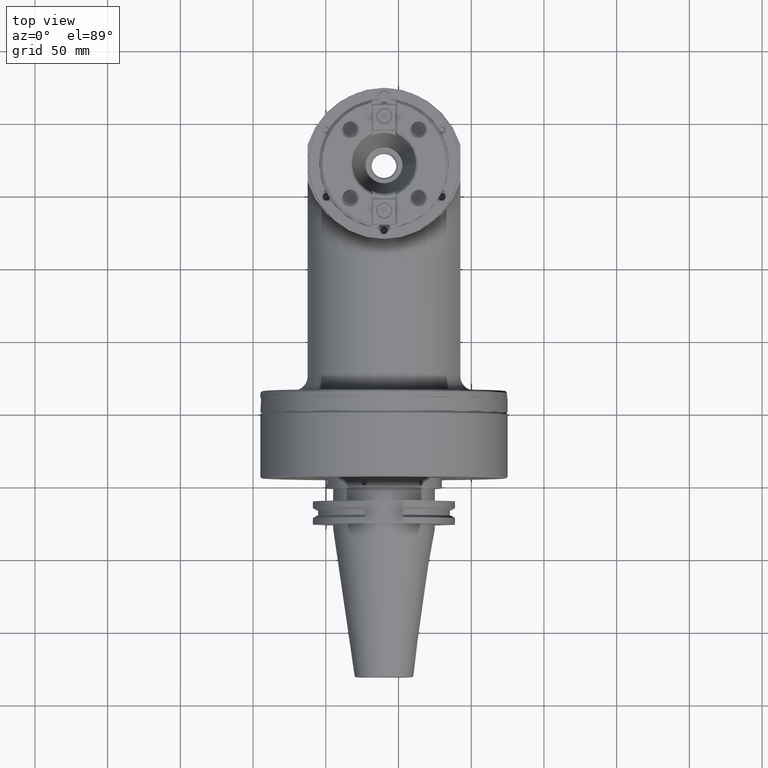
[diagram: clean part render]
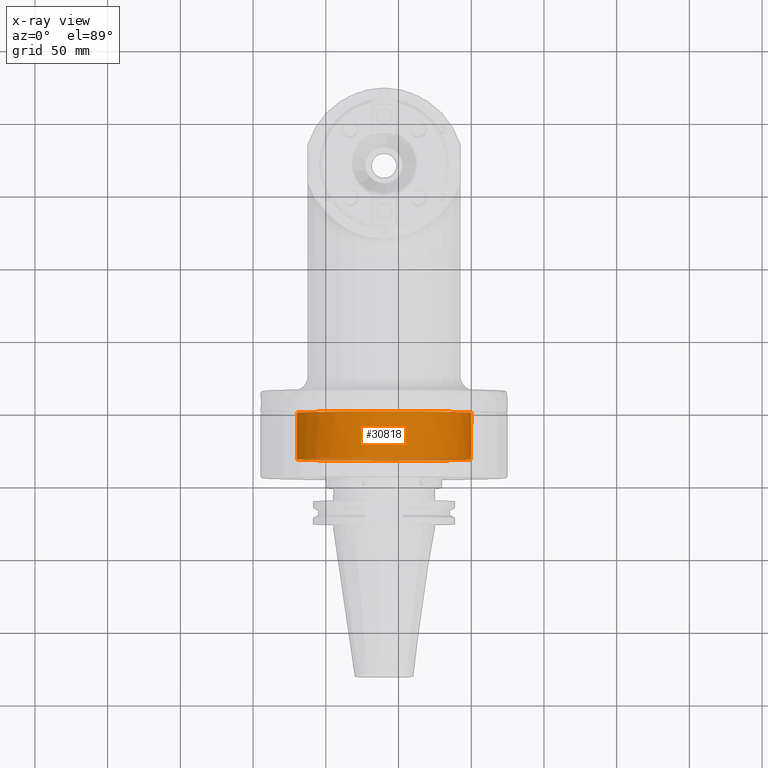
[diagram: x-ray — body ghosted, one internal face saturated and labeled with its STEP entity id]
A machine part, top view, then the same camera in x-ray: the body is ghosted and one INTERNAL B-rep face — a face not visible from any outside direction — is saturated and labeled: STEP entity #30818.
In plain terms, the highlighted cylindrical surface (bore or boss wall) has radius 60 mm, axis along (0, 1, -0).
Its self-contained STEP definition (entity closure, byte-faithful):
#686=CYLINDRICAL_SURFACE('',#32949,60.);
#2151=LINE('',#47828,#5062);
#5062=VECTOR('',#37156,60.);
#7650=FACE_OUTER_BOUND('',#9538,.T.);
#9538=EDGE_LOOP('',(#21808,#21809,#21810,#21811,#21812));
#11502=CIRCLE('',#32936,60.);
#11515=CIRCLE('',#32950,60.);
#11516=CIRCLE('',#32951,60.);
#13214=VERTEX_POINT('',#47800);
#13227=VERTEX_POINT('',#47827);
#13228=VERTEX_POINT('',#47829);
#16486=EDGE_CURVE('',#13214,#13214,#11502,.T.);
#16499=EDGE_CURVE('',#13214,#13227,#2151,.T.);
#16500=EDGE_CURVE('',#13228,#13227,#11515,.T.);
#16501=EDGE_CURVE('',#13227,#13228,#11516,.T.);
#21808=ORIENTED_EDGE('',*,*,#16486,.T.);
#21809=ORIENTED_EDGE('',*,*,#16499,.T.);
#21810=ORIENTED_EDGE('',*,*,#16500,.F.);
#21811=ORIENTED_EDGE('',*,*,#16501,.F.);
#21812=ORIENTED_EDGE('',*,*,#16499,.F.);
#30818=ADVANCED_FACE('',(#7650),#686,.T.);
#32936=AXIS2_PLACEMENT_3D('',#47801,#37128,#37129);
#32949=AXIS2_PLACEMENT_3D('',#47826,#37154,#37155);
#32950=AXIS2_PLACEMENT_3D('',#47830,#37157,#37158);
#32951=AXIS2_PLACEMENT_3D('',#47831,#37159,#37160);
#37128=DIRECTION('center_axis',(0.,-1.,0.));
#37129=DIRECTION('ref_axis',(-1.,0.,0.));
#37154=DIRECTION('center_axis',(0.,1.,0.));
#37155=DIRECTION('ref_axis',(1.,0.,0.));
#37156=DIRECTION('',(0.,-1.,0.));
#37157=DIRECTION('center_axis',(0.,-1.,0.));
#37158=DIRECTION('ref_axis',(-1.,0.,0.));
#37159=DIRECTION('center_axis',(0.,-1.,0.));
#37160=DIRECTION('ref_axis',(-1.,0.,0.));
#47800=CARTESIAN_POINT('',(-60.,33.,7.34788079488412E-15));
#47801=CARTESIAN_POINT('Origin',(0.,33.,0.));
#47826=CARTESIAN_POINT('Origin',(0.,-10.15,0.));
#47827=CARTESIAN_POINT('',(-60.,0.9999711635965,7.34788079488412E-15));
#47828=CARTESIAN_POINT('',(-60.,-10.15,7.34788079488412E-15));
#47829=CARTESIAN_POINT('',(-5.85861631840616E-13,0.99997116359542,60.0000000000019));
#47830=CARTESIAN_POINT('Origin',(0.,0.9999711635965,0.));
#47831=CARTESIAN_POINT('Origin',(0.,0.9999711635965,0.));